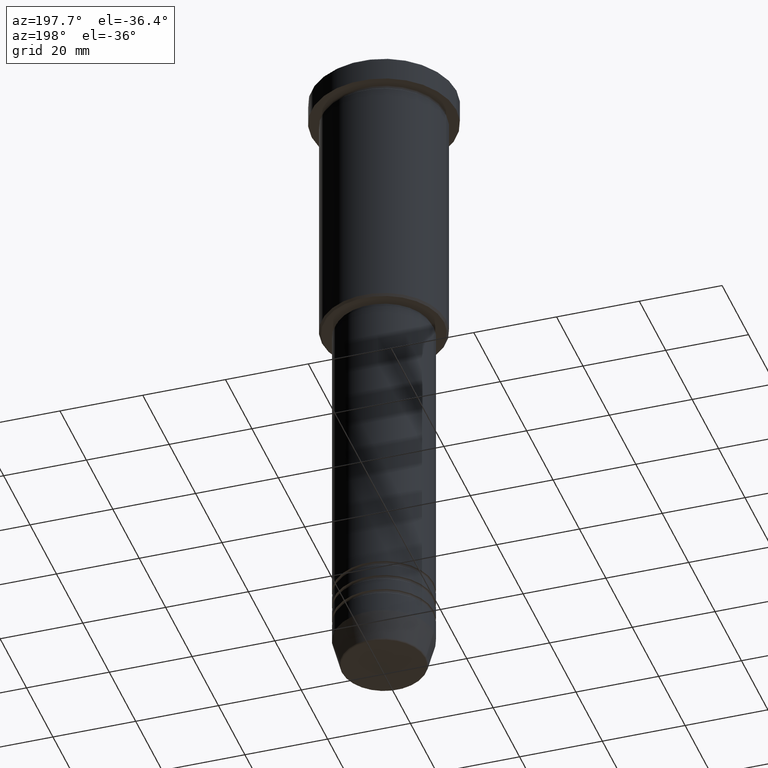
[diagram: clean part render]
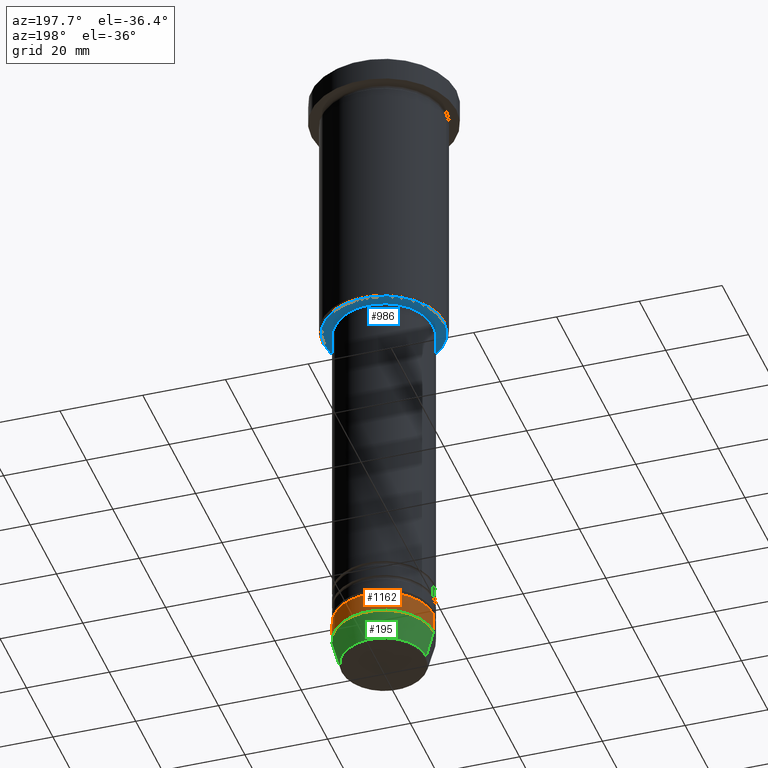
[diagram: same view with three faces highlighted in distinct colors, each labeled with its STEP entity id]
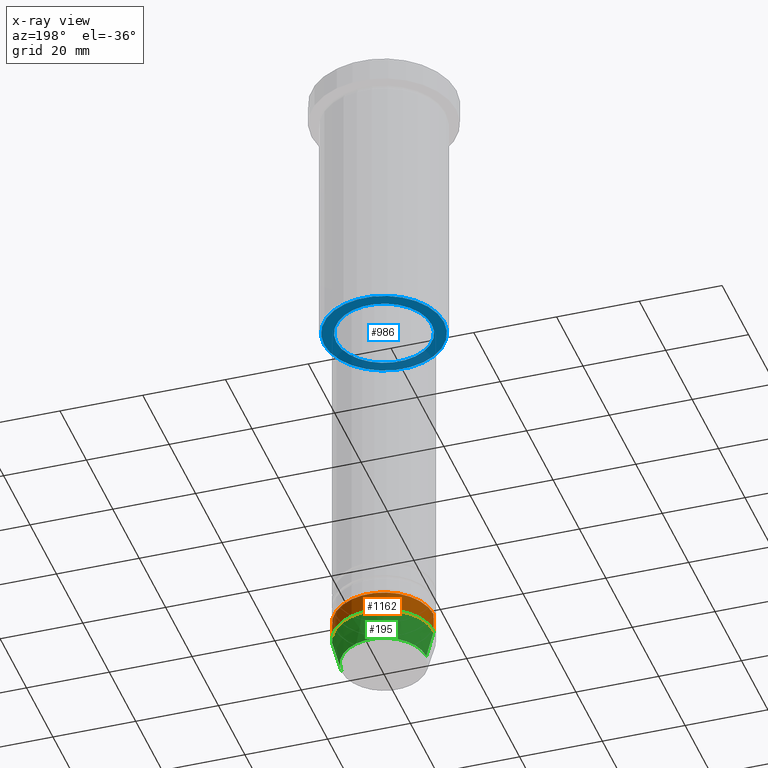
[diagram: x-ray of the same camera — body ghosted, the three highlighted faces saturated]
A machine part, auxiliary view with three faces highlighted in distinct colors.
The next image is the same camera in x-ray (body ghosted, the three faces saturated) — at least one of them is partly hidden behind the body in this view.
Their STEP definitions:

[orange] entity #1162 — the highlighted cylindrical surface (partial cylindrical patch) has radius 12 mm, axis along (-0, -0, 1).
#59 = DIRECTION ( 'NONE',  ( -0.000000000000000000, -0.000000000000000000, 1.000000000000000000 ) ) ;
#148 = EDGE_CURVE ( 'NONE', #884, #864, #183, .T. ) ;
#156 = CARTESIAN_POINT ( 'NONE',  ( 0.000000000000000000, 0.000000000000000000, -154.0000000000000284 ) ) ;
#182 = CARTESIAN_POINT ( 'NONE',  ( -12.00000000000000000, 1.469576158976823947E-15, -149.0000000000000284 ) ) ;
#183 = CIRCLE ( 'NONE', #908, 12.00000000000000000 ) ;
#201 = EDGE_CURVE ( 'NONE', #901, #862, #1071, .T. ) ;
#288 = AXIS2_PLACEMENT_3D ( 'NONE', #586, #1037, #953 ) ;
#316 = FACE_OUTER_BOUND ( 'NONE', #707, .T. ) ;
#352 = DIRECTION ( 'NONE',  ( 1.000000000000000000, 0.000000000000000000, 0.000000000000000000 ) ) ;
#367 = DIRECTION ( 'NONE',  ( 1.000000000000000000, 0.000000000000000000, 0.000000000000000000 ) ) ;
#385 = DIRECTION ( 'NONE',  ( -0.000000000000000000, -0.000000000000000000, 1.000000000000000000 ) ) ;
#426 = ORIENTED_EDGE ( 'NONE', *, *, #148, .T. ) ;
#458 = VECTOR ( 'NONE', #385, 1000.000000000000000 ) ;
#482 = ORIENTED_EDGE ( 'NONE', *, *, #493, .T. ) ;
#493 = EDGE_CURVE ( 'NONE', #864, #862, #761, .T. ) ;
#586 = CARTESIAN_POINT ( 'NONE',  ( 0.000000000000000000, 0.000000000000000000, 0.000000000000000000 ) ) ;
#631 = DIRECTION ( 'NONE',  ( -0.000000000000000000, -0.000000000000000000, 1.000000000000000000 ) ) ;
#636 = AXIS2_PLACEMENT_3D ( 'NONE', #1058, #59, #367 ) ;
#670 = CARTESIAN_POINT ( 'NONE',  ( -12.00000000000000000, 1.469576158976823947E-15, 0.000000000000000000 ) ) ;
#707 = EDGE_LOOP ( 'NONE', ( #426, #482, #1054, #1069 ) ) ;
#721 = VECTOR ( 'NONE', #771, 1000.000000000000000 ) ;
#761 = LINE ( 'NONE', #670, #721 ) ;
#769 = EDGE_CURVE ( 'NONE', #884, #901, #1176, .T. ) ;
#771 = DIRECTION ( 'NONE',  ( -0.000000000000000000, -0.000000000000000000, 1.000000000000000000 ) ) ;
#810 = CARTESIAN_POINT ( 'NONE',  ( -12.00000000000000000, 1.469576158976823947E-15, -154.0000000000000284 ) ) ;
#819 = CARTESIAN_POINT ( 'NONE',  ( 12.00000000000000000, 0.000000000000000000, -154.0000000000000284 ) ) ;
#824 = CARTESIAN_POINT ( 'NONE',  ( 12.00000000000000000, 0.000000000000000000, -149.0000000000000284 ) ) ;
#832 = CARTESIAN_POINT ( 'NONE',  ( 12.00000000000000000, 0.000000000000000000, 0.000000000000000000 ) ) ;
#862 = VERTEX_POINT ( 'NONE', #182 ) ;
#864 = VERTEX_POINT ( 'NONE', #810 ) ;
#884 = VERTEX_POINT ( 'NONE', #819 ) ;
#901 = VERTEX_POINT ( 'NONE', #824 ) ;
#908 = AXIS2_PLACEMENT_3D ( 'NONE', #156, #631, #352 ) ;
#953 = DIRECTION ( 'NONE',  ( 1.000000000000000000, 0.000000000000000000, 0.000000000000000000 ) ) ;
#1037 = DIRECTION ( 'NONE',  ( -0.000000000000000000, -0.000000000000000000, 1.000000000000000000 ) ) ;
#1054 = ORIENTED_EDGE ( 'NONE', *, *, #201, .F. ) ;
#1058 = CARTESIAN_POINT ( 'NONE',  ( 0.000000000000000000, 0.000000000000000000, -149.0000000000000284 ) ) ;
#1069 = ORIENTED_EDGE ( 'NONE', *, *, #769, .F. ) ;
#1071 = CIRCLE ( 'NONE', #636, 12.00000000000000000 ) ;
#1121 = CYLINDRICAL_SURFACE ( 'NONE', #288, 12.00000000000000000 ) ;
#1162 = ADVANCED_FACE ( 'NONE', ( #316 ), #1121, .T. ) ;
#1176 = LINE ( 'NONE', #832, #458 ) ;

[blue] entity #986 — the highlighted planar face has unit normal (0, 0, -1).
#11 = VERTEX_POINT ( 'NONE', #125 ) ;
#27 = AXIS2_PLACEMENT_3D ( 'NONE', #134, #939, #1041 ) ;
#53 = DIRECTION ( 'NONE',  ( -0.000000000000000000, -0.000000000000000000, 1.000000000000000000 ) ) ;
#62 = EDGE_CURVE ( 'NONE', #713, #11, #1174, .T. ) ;
#97 = FACE_OUTER_BOUND ( 'NONE', #1118, .T. ) ;
#112 = ORIENTED_EDGE ( 'NONE', *, *, #708, .T. ) ;
#125 = CARTESIAN_POINT ( 'NONE',  ( -11.50000000000000000, 1.408343819019456176E-15, -66.00000000000002842 ) ) ;
#134 = CARTESIAN_POINT ( 'NONE',  ( 0.000000000000000000, 0.000000000000000000, -66.00000000000002842 ) ) ;
#164 = DIRECTION ( 'NONE',  ( 0.000000000000000000, 0.000000000000000000, -1.000000000000000000 ) ) ;
#205 = DIRECTION ( 'NONE',  ( -1.000000000000000000, 0.000000000000000000, 0.000000000000000000 ) ) ;
#307 = PLANE ( 'NONE',  #343 ) ;
#322 = CIRCLE ( 'NONE', #1077, 14.50000000000002487 ) ;
#343 = AXIS2_PLACEMENT_3D ( 'NONE', #1107, #856, #477 ) ;
#370 = ORIENTED_EDGE ( 'NONE', *, *, #62, .T. ) ;
#469 = CIRCLE ( 'NONE', #1126, 14.50000000000002487 ) ;
#470 = EDGE_CURVE ( 'NONE', #11, #713, #581, .T. ) ;
#475 = AXIS2_PLACEMENT_3D ( 'NONE', #879, #53, #1116 ) ;
#477 = DIRECTION ( 'NONE',  ( -1.000000000000000000, 0.000000000000000000, -0.000000000000000000 ) ) ;
#545 = DIRECTION ( 'NONE',  ( -1.000000000000000000, 0.000000000000000000, 0.000000000000000000 ) ) ;
#556 = CARTESIAN_POINT ( 'NONE',  ( 11.50000000000000000, 0.000000000000000000, -66.00000000000002842 ) ) ;
#581 = CIRCLE ( 'NONE', #27, 11.50000000000000000 ) ;
#595 = CARTESIAN_POINT ( 'NONE',  ( 14.50000000000002487, 0.000000000000000000, -66.00000000000002842 ) ) ;
#632 = VERTEX_POINT ( 'NONE', #983 ) ;
#657 = CARTESIAN_POINT ( 'NONE',  ( 0.000000000000000000, 0.000000000000000000, -66.00000000000002842 ) ) ;
#673 = EDGE_LOOP ( 'NONE', ( #370, #1173 ) ) ;
#708 = EDGE_CURVE ( 'NONE', #1160, #632, #469, .T. ) ;
#713 = VERTEX_POINT ( 'NONE', #556 ) ;
#750 = DIRECTION ( 'NONE',  ( 0.000000000000000000, 0.000000000000000000, -1.000000000000000000 ) ) ;
#840 = EDGE_CURVE ( 'NONE', #632, #1160, #322, .T. ) ;
#856 = DIRECTION ( 'NONE',  ( 0.000000000000000000, 0.000000000000000000, -1.000000000000000000 ) ) ;
#879 = CARTESIAN_POINT ( 'NONE',  ( 0.000000000000000000, 0.000000000000000000, -66.00000000000002842 ) ) ;
#917 = ORIENTED_EDGE ( 'NONE', *, *, #840, .T. ) ;
#939 = DIRECTION ( 'NONE',  ( -0.000000000000000000, -0.000000000000000000, 1.000000000000000000 ) ) ;
#983 = CARTESIAN_POINT ( 'NONE',  ( -14.50000000000002487, 1.806354028742347380E-15, -66.00000000000002842 ) ) ;
#986 = ADVANCED_FACE ( 'NONE', ( #97, #1014 ), #307, .T. ) ;
#1014 = FACE_BOUND ( 'NONE', #673, .T. ) ;
#1041 = DIRECTION ( 'NONE',  ( 1.000000000000000000, 0.000000000000000000, 0.000000000000000000 ) ) ;
#1077 = AXIS2_PLACEMENT_3D ( 'NONE', #1091, #164, #545 ) ;
#1091 = CARTESIAN_POINT ( 'NONE',  ( 0.000000000000000000, 0.000000000000000000, -66.00000000000002842 ) ) ;
#1107 = CARTESIAN_POINT ( 'NONE',  ( 0.000000000000000000, 15.00000000000000000, -66.00000000000002842 ) ) ;
#1116 = DIRECTION ( 'NONE',  ( 1.000000000000000000, 0.000000000000000000, 0.000000000000000000 ) ) ;
#1118 = EDGE_LOOP ( 'NONE', ( #112, #917 ) ) ;
#1126 = AXIS2_PLACEMENT_3D ( 'NONE', #657, #750, #205 ) ;
#1160 = VERTEX_POINT ( 'NONE', #595 ) ;
#1173 = ORIENTED_EDGE ( 'NONE', *, *, #470, .T. ) ;
#1174 = CIRCLE ( 'NONE', #475, 11.50000000000000000 ) ;

[green] entity #195 — the highlighted conical surface has half-angle 15 deg.
#41 = ORIENTED_EDGE ( 'NONE', *, *, #661, .F. ) ;
#67 = CARTESIAN_POINT ( 'NONE',  ( -10.22365507213719127, 1.360806402472382744E-15, -160.6294095225512706 ) ) ;
#79 = DIRECTION ( 'NONE',  ( 0.2588190451025213501, 0.000000000000000000, 0.9659258262890680902 ) ) ;
#111 = CIRCLE ( 'NONE', #779, 10.22365507213719127 ) ;
#148 = EDGE_CURVE ( 'NONE', #884, #864, #183, .T. ) ;
#156 = CARTESIAN_POINT ( 'NONE',  ( 0.000000000000000000, 0.000000000000000000, -154.0000000000000284 ) ) ;
#174 = CARTESIAN_POINT ( 'NONE',  ( 12.00000000000000000, 0.000000000000000000, -154.0000000000000284 ) ) ;
#175 = CARTESIAN_POINT ( 'NONE',  ( 0.000000000000000000, 0.000000000000000000, -154.0000000000000284 ) ) ;
#183 = CIRCLE ( 'NONE', #908, 12.00000000000000000 ) ;
#195 = ADVANCED_FACE ( 'NONE', ( #250 ), #889, .T. ) ;
#223 = VERTEX_POINT ( 'NONE', #67 ) ;
#250 = FACE_OUTER_BOUND ( 'NONE', #768, .T. ) ;
#272 = LINE ( 'NONE', #1088, #665 ) ;
#340 = DIRECTION ( 'NONE',  ( 1.000000000000000000, 0.000000000000000000, 0.000000000000000000 ) ) ;
#341 = DIRECTION ( 'NONE',  ( -0.000000000000000000, -0.000000000000000000, 1.000000000000000000 ) ) ;
#352 = DIRECTION ( 'NONE',  ( 1.000000000000000000, 0.000000000000000000, 0.000000000000000000 ) ) ;
#381 = AXIS2_PLACEMENT_3D ( 'NONE', #175, #457, #340 ) ;
#382 = VECTOR ( 'NONE', #79, 1000.000000000000000 ) ;
#418 = ORIENTED_EDGE ( 'NONE', *, *, #1146, .T. ) ;
#457 = DIRECTION ( 'NONE',  ( -0.000000000000000000, -0.000000000000000000, 1.000000000000000000 ) ) ;
#631 = DIRECTION ( 'NONE',  ( -0.000000000000000000, -0.000000000000000000, 1.000000000000000000 ) ) ;
#661 = EDGE_CURVE ( 'NONE', #858, #884, #1075, .T. ) ;
#665 = VECTOR ( 'NONE', #1101, 1000.000000000000000 ) ;
#724 = CARTESIAN_POINT ( 'NONE',  ( 10.22365507213719127, 0.000000000000000000, -160.6294095225512706 ) ) ;
#768 = EDGE_LOOP ( 'NONE', ( #418, #1099, #952, #41 ) ) ;
#779 = AXIS2_PLACEMENT_3D ( 'NONE', #1144, #341, #1134 ) ;
#785 = EDGE_CURVE ( 'NONE', #223, #864, #272, .T. ) ;
#810 = CARTESIAN_POINT ( 'NONE',  ( -12.00000000000000000, 1.469576158976823947E-15, -154.0000000000000284 ) ) ;
#819 = CARTESIAN_POINT ( 'NONE',  ( 12.00000000000000000, 0.000000000000000000, -154.0000000000000284 ) ) ;
#858 = VERTEX_POINT ( 'NONE', #724 ) ;
#864 = VERTEX_POINT ( 'NONE', #810 ) ;
#884 = VERTEX_POINT ( 'NONE', #819 ) ;
#889 = CONICAL_SURFACE ( 'NONE', #381, 12.00000000000000000, 0.2617993877991500740 ) ;
#908 = AXIS2_PLACEMENT_3D ( 'NONE', #156, #631, #352 ) ;
#952 = ORIENTED_EDGE ( 'NONE', *, *, #148, .F. ) ;
#1075 = LINE ( 'NONE', #174, #382 ) ;
#1088 = CARTESIAN_POINT ( 'NONE',  ( -12.00000000000000000, 1.469576158976823947E-15, -154.0000000000000284 ) ) ;
#1099 = ORIENTED_EDGE ( 'NONE', *, *, #785, .T. ) ;
#1101 = DIRECTION ( 'NONE',  ( -0.2588190451025213501, 3.169619151431772337E-17, 0.9659258262890680902 ) ) ;
#1134 = DIRECTION ( 'NONE',  ( 1.000000000000000000, 0.000000000000000000, 0.000000000000000000 ) ) ;
#1144 = CARTESIAN_POINT ( 'NONE',  ( 0.000000000000000000, 0.000000000000000000, -160.6294095225512706 ) ) ;
#1146 = EDGE_CURVE ( 'NONE', #858, #223, #111, .T. ) ;